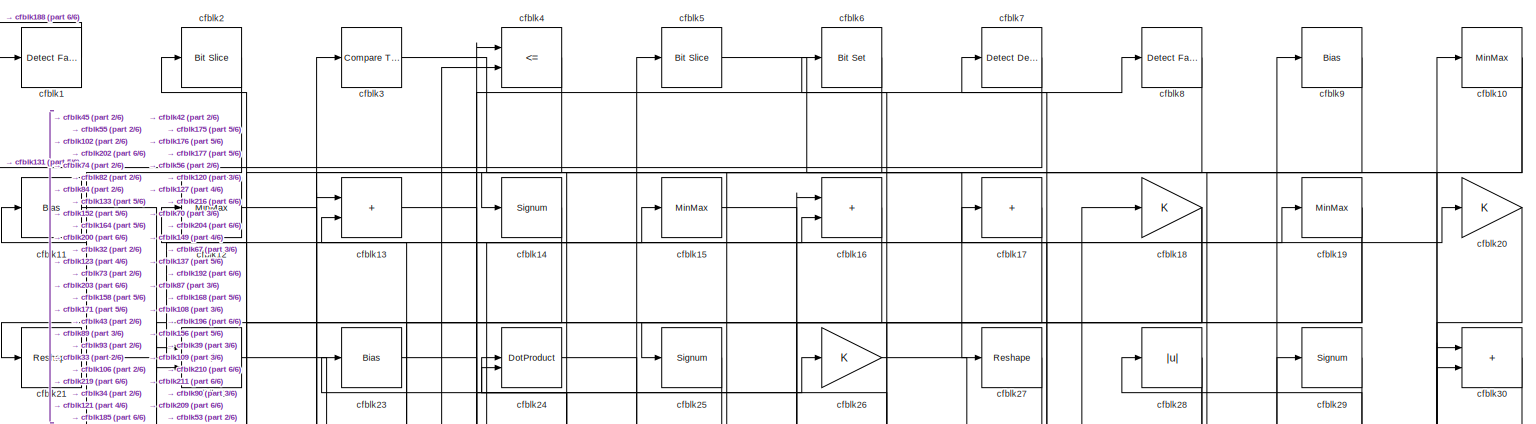
[diagram: root canvas - part 1/6, full width, top band]
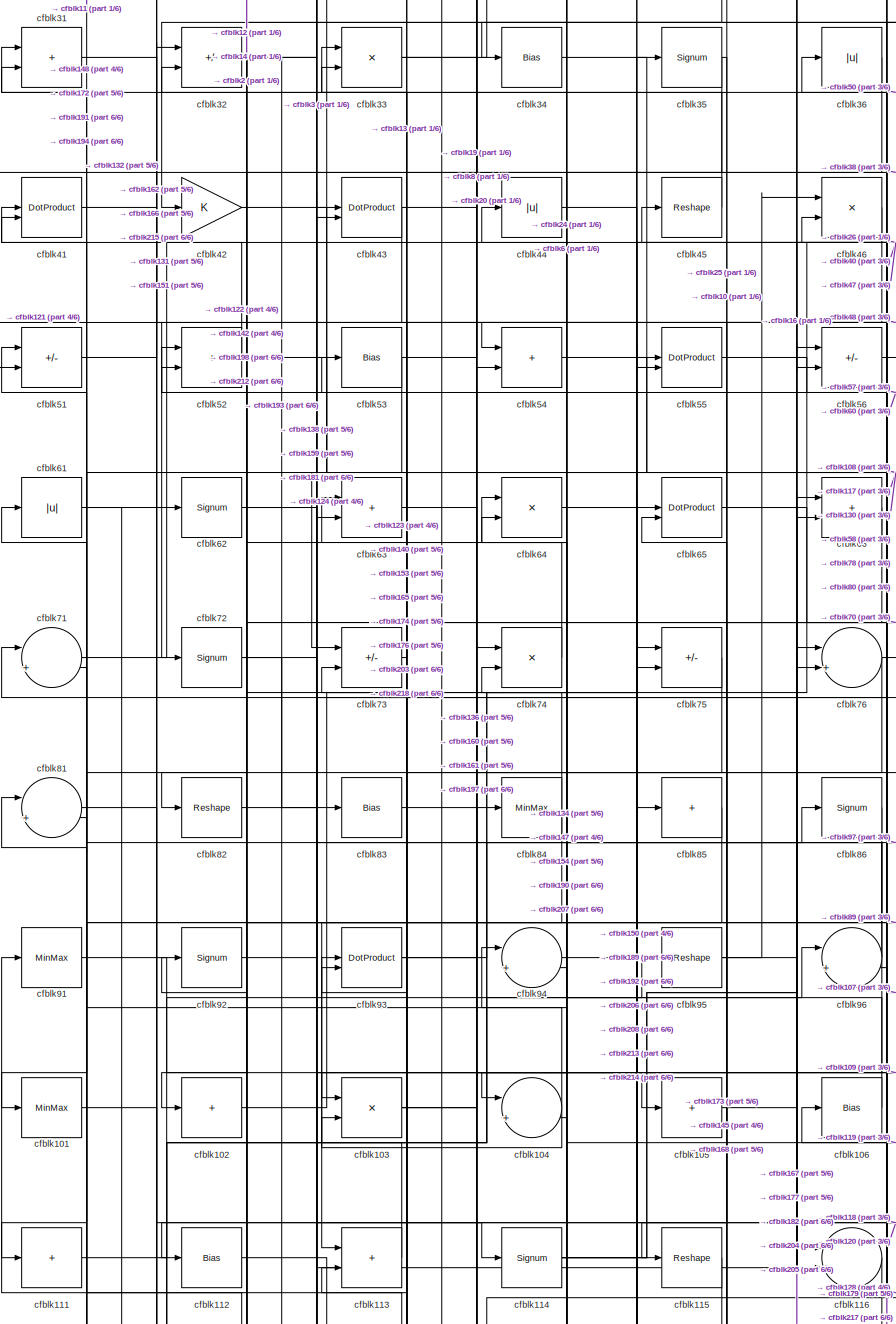
[diagram: root canvas - part 2/6, top left region]
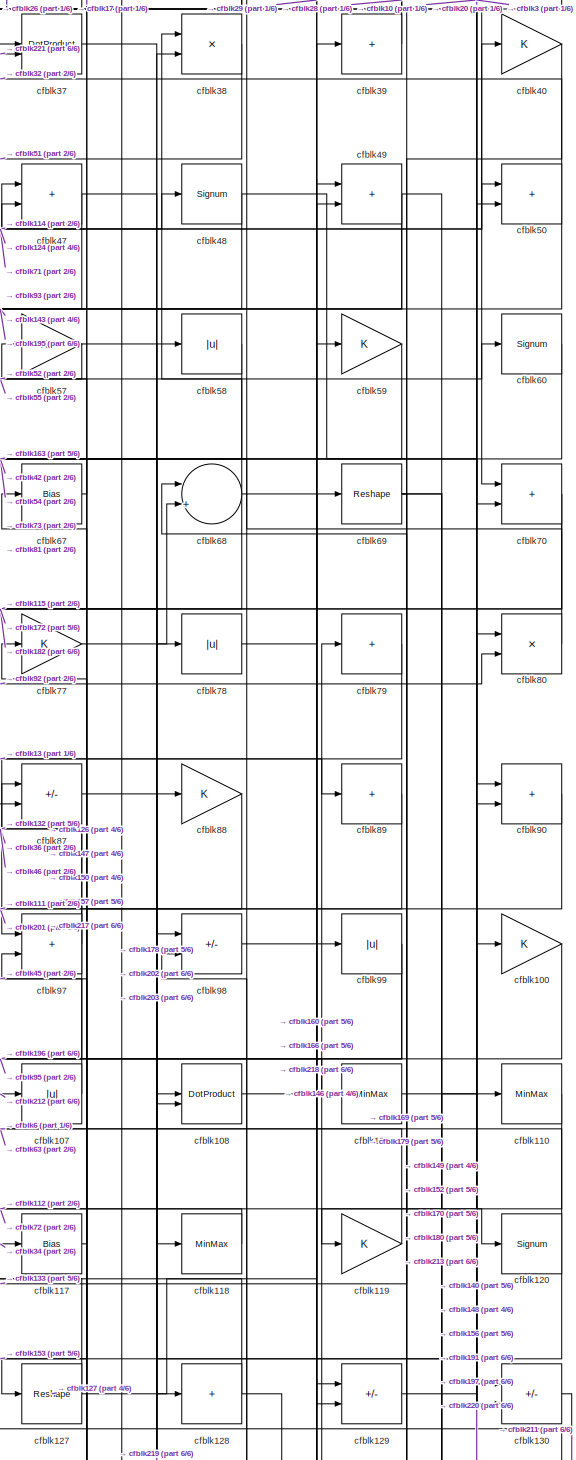
[diagram: root canvas - part 3/6, middle right region]
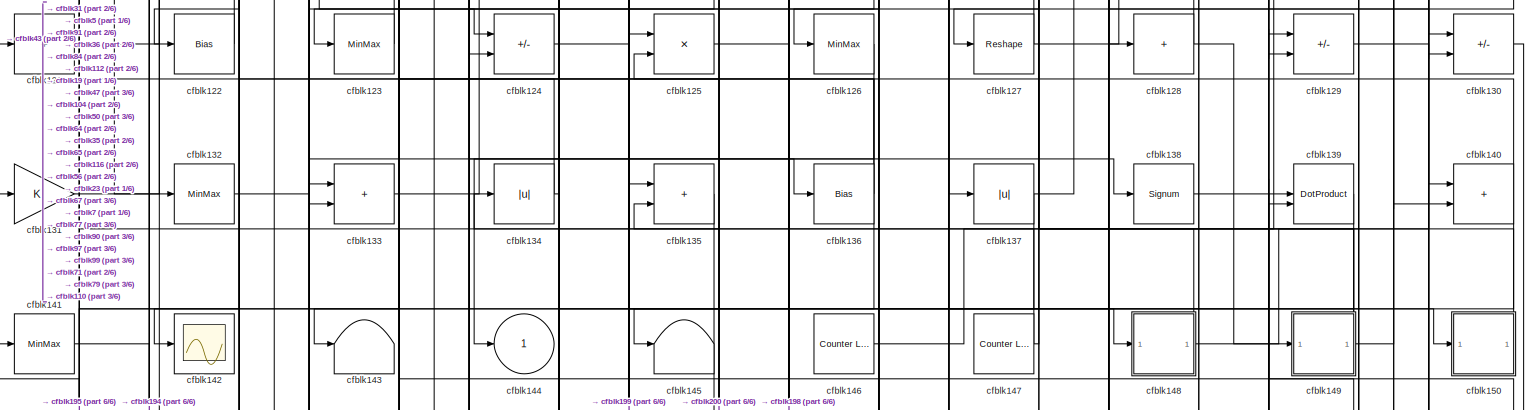
[diagram: root canvas - part 4/6, full width, middle band]
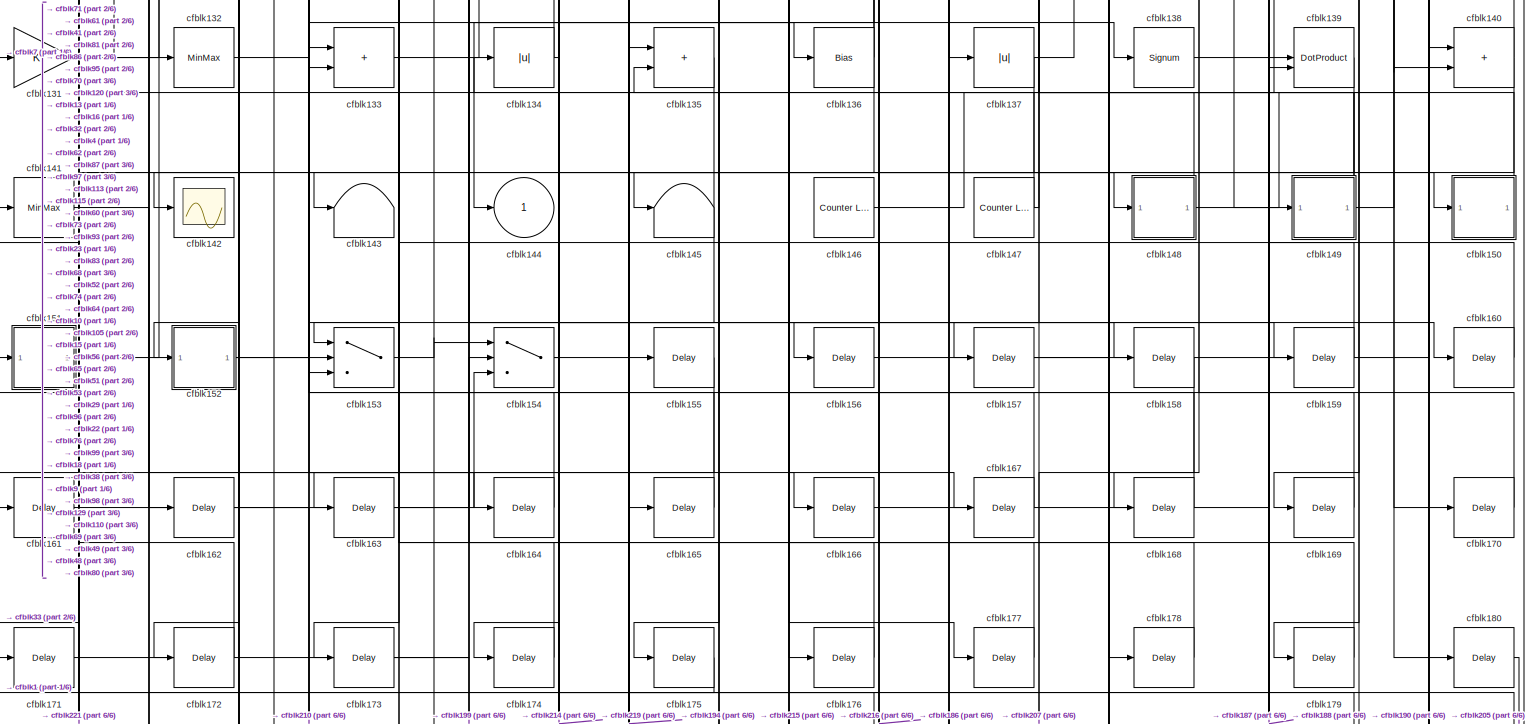
[diagram: root canvas - part 5/6, full width, bottom band]
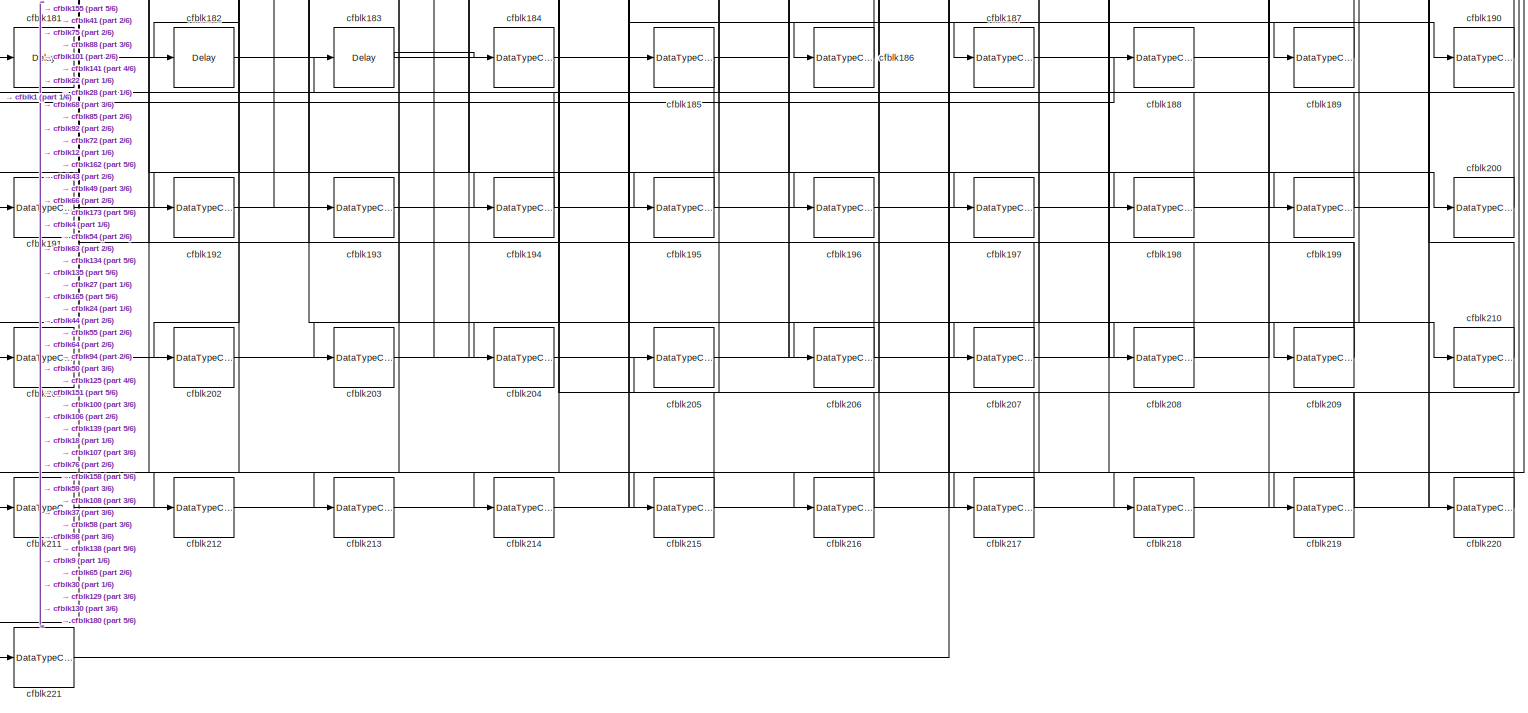
[diagram: root canvas - part 6/6, full width, bottom band]
MODEL slx_bb620e0c5f4d
KIND model
CONFIG AbsTol = auto
CONFIG EnableMultiTasking = off
CONFIG FixedStep = auto
CONFIG MaxStep = auto
CONFIG MinStep = auto
CONFIG RelTol = 1e-3
CONFIG SampleTimeConstraint = Unconstrained
CONFIG SolverName = VariableStepAuto
CONFIG StartTime = 0.0
CONFIG StopTime = 10.0
BLOCK [Reference] cfblk1  REF=hdlsllib/Logic and Bit
Operations/Detect Fall
Negative
  SourceBlock = hdlsllib/Logic and Bit\nOperations/Detect Fall\nNegative
  SourceType = Detect Fall Negative
BLOCK [MinMax] cfblk10
BLOCK [Gain] cfblk100
BLOCK [MinMax] cfblk101
BLOCK [Sum] cfblk102
  IconShape = rectangular
  Inputs = +
BLOCK [Product] cfblk103
  Inputs = */
  RndMeth = Zero
  SaturateOnIntegerOverflow = on
BLOCK [Sum] cfblk104
  Inputs = |++
BLOCK [Sum] cfblk105
  IconShape = rectangular
  Inputs = +
BLOCK [Bias] cfblk106
  Bias = 0.0
  SaturateOnIntegerOverflow = off
BLOCK [Abs] cfblk107
  SaturateOnIntegerOverflow = off
BLOCK [DotProduct] cfblk108
  OutDataTypeStr = Inherit: Inherit via internal rule
BLOCK [MinMax] cfblk109
BLOCK [Bias] cfblk11
  Bias = 0.0
  SaturateOnIntegerOverflow = off
BLOCK [MinMax] cfblk110
BLOCK [Sum] cfblk111
  IconShape = rectangular
  Inputs = +
BLOCK [Bias] cfblk112
  Bias = 0.0
  SaturateOnIntegerOverflow = off
BLOCK [Sum] cfblk113
  IconShape = rectangular
BLOCK [Signum] cfblk114
BLOCK [Reshape] cfblk115
BLOCK [Sum] cfblk116
  Inputs = |++
BLOCK [Bias] cfblk117
  Bias = 0.0
  SaturateOnIntegerOverflow = off
BLOCK [MinMax] cfblk118
BLOCK [Gain] cfblk119
BLOCK [MinMax] cfblk12
BLOCK [Signum] cfblk120
BLOCK [Sum] cfblk121
  IconShape = rectangular
  Inputs = +
BLOCK [Bias] cfblk122
  Bias = 0.0
  SaturateOnIntegerOverflow = off
BLOCK [MinMax] cfblk123
BLOCK [Sum] cfblk124
  IconShape = rectangular
  Inputs = +-
BLOCK [Product] cfblk125
  Inputs = */
  RndMeth = Zero
  SaturateOnIntegerOverflow = on
BLOCK [MinMax] cfblk126
BLOCK [Reshape] cfblk127
BLOCK [Sum] cfblk128
  IconShape = rectangular
  Inputs = +
BLOCK [Sum] cfblk129
  IconShape = rectangular
  Inputs = +-
BLOCK [Sum] cfblk13
  IconShape = rectangular
BLOCK [Sum] cfblk130
  IconShape = rectangular
  Inputs = +-
BLOCK [Gain] cfblk131
BLOCK [MinMax] cfblk132
BLOCK [Sum] cfblk133
  IconShape = rectangular
BLOCK [Abs] cfblk134
  SaturateOnIntegerOverflow = off
BLOCK [Sum] cfblk135
  IconShape = rectangular
BLOCK [Bias] cfblk136
  Bias = 0.0
  SaturateOnIntegerOverflow = off
BLOCK [Abs] cfblk137
  SaturateOnIntegerOverflow = off
BLOCK [Signum] cfblk138
BLOCK [DotProduct] cfblk139
  OutDataTypeStr = Inherit: Inherit via internal rule
BLOCK [Signum] cfblk14
BLOCK [Sum] cfblk140
  IconShape = rectangular
BLOCK [MinMax] cfblk141
BLOCK [Scope] cfblk142
  Floating = off
  NumInputPorts = 1
  ScopeSpecificationString = Simulink.scopes.TimeScopeBlockCfg('CurrentConfiguration', extmgr.ConfigurationSet(extmgr.Configuration('Core','General UI',true),extmgr.Configuration('Core','Source UI',true),extmgr.Configuration('Sources','WiredSimulink',true,'DataLoggingVariableName','ScopeData2','DataLoggingSaveFormat','Array','DataLoggingLimitDataPoints',true,'DataLoggingDecimation','1'),extmgr.Configuration('Visuals','Time Do...<+868ch>
BLOCK [Terminator] cfblk143
BLOCK [Outport] cfblk144
  VectorParamsAs1DForOutWhenUnconnected = off
BLOCK [Terminator] cfblk145
BLOCK [Reference] cfblk146  REF=hdlsllib/Sources/Counter
Limited
  SourceBlock = hdlsllib/Sources/Counter\nLimited
  SourceType = Counter Limited
BLOCK [Reference] cfblk147  REF=hdlsllib/Sources/Counter
Limited
  SourceBlock = hdlsllib/Sources/Counter\nLimited
  SourceType = Counter Limited
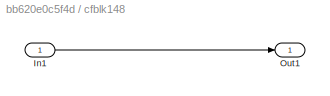
BLOCK [SubSystem] cfblk148
  LibrarySourceBlock = hdlsllib/Ports &\nSubsystems/Subsystem
BLOCK [Inport] cfblk148/In1
BLOCK [Outport] cfblk148/Out1
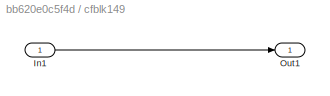
BLOCK [SubSystem] cfblk149
  LibrarySourceBlock = hdlsllib/Ports &\nSubsystems/Subsystem
BLOCK [Inport] cfblk149/In1
BLOCK [Outport] cfblk149/Out1
BLOCK [MinMax] cfblk15
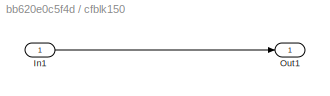
BLOCK [SubSystem] cfblk150
  LibrarySourceBlock = hdlsllib/Ports &\nSubsystems/Subsystem
BLOCK [Inport] cfblk150/In1
BLOCK [Outport] cfblk150/Out1
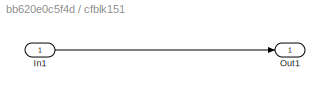
BLOCK [SubSystem] cfblk151
  LibrarySourceBlock = hdlsllib/Ports &\nSubsystems/Subsystem
BLOCK [Inport] cfblk151/In1
BLOCK [Outport] cfblk151/Out1
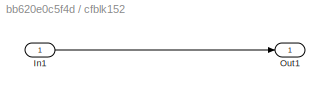
BLOCK [SubSystem] cfblk152
  LibrarySourceBlock = hdlsllib/Ports &\nSubsystems/Subsystem
BLOCK [Inport] cfblk152/In1
BLOCK [Outport] cfblk152/Out1
BLOCK [Switch] cfblk153
  InputSameDT = off
  SaturateOnIntegerOverflow = off
BLOCK [Switch] cfblk154
  InputSameDT = off
  SaturateOnIntegerOverflow = off
BLOCK [Delay] cfblk155
  InputPortMap = u0
  SampleTime = 1
BLOCK [Delay] cfblk156
  InputPortMap = u0
  SampleTime = 1
BLOCK [Delay] cfblk157
  InputPortMap = u0
  SampleTime = 1
BLOCK [Delay] cfblk158
  InputPortMap = u0
  SampleTime = 1
BLOCK [Delay] cfblk159
  InputPortMap = u0
  SampleTime = 1
BLOCK [Sum] cfblk16
  IconShape = rectangular
BLOCK [Delay] cfblk160
  InputPortMap = u0
  SampleTime = 1
BLOCK [Delay] cfblk161
  InputPortMap = u0
  SampleTime = 1
BLOCK [Delay] cfblk162
  InputPortMap = u0
  SampleTime = 1
BLOCK [Delay] cfblk163
  InputPortMap = u0
  SampleTime = 1
BLOCK [Delay] cfblk164
  InputPortMap = u0
  SampleTime = 1
BLOCK [Delay] cfblk165
  InputPortMap = u0
  SampleTime = 1
BLOCK [Delay] cfblk166
  InputPortMap = u0
  SampleTime = 1
BLOCK [Delay] cfblk167
  InputPortMap = u0
  SampleTime = 1
BLOCK [Delay] cfblk168
  InputPortMap = u0
  SampleTime = 1
BLOCK [Delay] cfblk169
  InputPortMap = u0
  SampleTime = 1
BLOCK [Sum] cfblk17
  IconShape = rectangular
  Inputs = +
BLOCK [Delay] cfblk170
  InputPortMap = u0
  SampleTime = 1
BLOCK [Delay] cfblk171
  InputPortMap = u0
  SampleTime = 1
BLOCK [Delay] cfblk172
  InputPortMap = u0
  SampleTime = 1
BLOCK [Delay] cfblk173
  InputPortMap = u0
  SampleTime = 1
BLOCK [Delay] cfblk174
  InputPortMap = u0
  SampleTime = 1
BLOCK [Delay] cfblk175
  InputPortMap = u0
  SampleTime = 1
BLOCK [Delay] cfblk176
  InputPortMap = u0
  SampleTime = 1
BLOCK [Delay] cfblk177
  InputPortMap = u0
  SampleTime = 1
BLOCK [Delay] cfblk178
  InputPortMap = u0
  SampleTime = 1
BLOCK [Delay] cfblk179
  InputPortMap = u0
  SampleTime = 1
BLOCK [Gain] cfblk18
BLOCK [Delay] cfblk180
  InputPortMap = u0
  SampleTime = 1
BLOCK [Delay] cfblk181
  InputPortMap = u0
  SampleTime = 1
BLOCK [Delay] cfblk182
  InputPortMap = u0
  SampleTime = 1
BLOCK [Delay] cfblk183
  InputPortMap = u0
  SampleTime = 1
BLOCK [DataTypeConversion] cfblk184
  OutDataTypeStr = uint8
  RndMeth = Floor
  SaturateOnIntegerOverflow = off
BLOCK [DataTypeConversion] cfblk185
  OutDataTypeStr = uint8
  RndMeth = Floor
  SaturateOnIntegerOverflow = off
BLOCK [DataTypeConversion] cfblk186
  OutDataTypeStr = uint8
  RndMeth = Floor
  SaturateOnIntegerOverflow = off
BLOCK [DataTypeConversion] cfblk187
  OutDataTypeStr = uint8
  RndMeth = Floor
  SaturateOnIntegerOverflow = off
BLOCK [DataTypeConversion] cfblk188
  OutDataTypeStr = uint8
  RndMeth = Floor
  SaturateOnIntegerOverflow = off
BLOCK [DataTypeConversion] cfblk189
  OutDataTypeStr = uint8
  RndMeth = Floor
  SaturateOnIntegerOverflow = off
BLOCK [MinMax] cfblk19
BLOCK [DataTypeConversion] cfblk190
  OutDataTypeStr = uint8
  RndMeth = Floor
  SaturateOnIntegerOverflow = off
BLOCK [DataTypeConversion] cfblk191
  OutDataTypeStr = uint8
  RndMeth = Floor
  SaturateOnIntegerOverflow = off
BLOCK [DataTypeConversion] cfblk192
  OutDataTypeStr = uint8
  RndMeth = Floor
  SaturateOnIntegerOverflow = off
BLOCK [DataTypeConversion] cfblk193
  OutDataTypeStr = uint8
  RndMeth = Floor
  SaturateOnIntegerOverflow = off
BLOCK [DataTypeConversion] cfblk194
  RndMeth = Floor
  SaturateOnIntegerOverflow = off
BLOCK [DataTypeConversion] cfblk195
  OutDataTypeStr = uint8
  RndMeth = Floor
  SaturateOnIntegerOverflow = off
BLOCK [DataTypeConversion] cfblk196
  RndMeth = Floor
  SaturateOnIntegerOverflow = off
BLOCK [DataTypeConversion] cfblk197
  OutDataTypeStr = uint8
  RndMeth = Floor
  SaturateOnIntegerOverflow = off
BLOCK [DataTypeConversion] cfblk198
  OutDataTypeStr = uint8
  RndMeth = Floor
  SaturateOnIntegerOverflow = off
BLOCK [DataTypeConversion] cfblk199
  OutDataTypeStr = uint8
  RndMeth = Floor
  SaturateOnIntegerOverflow = off
BLOCK [Reference] cfblk2  REF=hdlsllib/Logic and Bit
Operations/Bit Slice
  SourceBlock = hdlsllib/Logic and Bit\nOperations/Bit Slice
  SourceType = Bit Slice
BLOCK [Gain] cfblk20
BLOCK [DataTypeConversion] cfblk200
  OutDataTypeStr = uint8
  RndMeth = Floor
  SaturateOnIntegerOverflow = off
BLOCK [DataTypeConversion] cfblk201
  RndMeth = Floor
  SaturateOnIntegerOverflow = off
BLOCK [DataTypeConversion] cfblk202
  OutDataTypeStr = uint8
  RndMeth = Floor
  SaturateOnIntegerOverflow = off
BLOCK [DataTypeConversion] cfblk203
  RndMeth = Floor
  SaturateOnIntegerOverflow = off
BLOCK [DataTypeConversion] cfblk204
  OutDataTypeStr = uint8
  RndMeth = Floor
  SaturateOnIntegerOverflow = off
BLOCK [DataTypeConversion] cfblk205
  OutDataTypeStr = uint8
  RndMeth = Floor
  SaturateOnIntegerOverflow = off
BLOCK [DataTypeConversion] cfblk206
  OutDataTypeStr = uint8
  RndMeth = Floor
  SaturateOnIntegerOverflow = off
BLOCK [DataTypeConversion] cfblk207
  OutDataTypeStr = uint8
  RndMeth = Floor
  SaturateOnIntegerOverflow = off
BLOCK [DataTypeConversion] cfblk208
  OutDataTypeStr = uint8
  RndMeth = Floor
  SaturateOnIntegerOverflow = off
BLOCK [DataTypeConversion] cfblk209
  RndMeth = Floor
  SaturateOnIntegerOverflow = off
BLOCK [Reshape] cfblk21
BLOCK [DataTypeConversion] cfblk210
  OutDataTypeStr = uint8
  RndMeth = Floor
  SaturateOnIntegerOverflow = off
BLOCK [DataTypeConversion] cfblk211
  OutDataTypeStr = uint8
  RndMeth = Floor
  SaturateOnIntegerOverflow = off
BLOCK [DataTypeConversion] cfblk212
  OutDataTypeStr = uint8
  RndMeth = Floor
  SaturateOnIntegerOverflow = off
BLOCK [DataTypeConversion] cfblk213
  OutDataTypeStr = uint8
  RndMeth = Floor
  SaturateOnIntegerOverflow = off
BLOCK [DataTypeConversion] cfblk214
  OutDataTypeStr = uint8
  RndMeth = Floor
  SaturateOnIntegerOverflow = off
BLOCK [DataTypeConversion] cfblk215
  OutDataTypeStr = uint8
  RndMeth = Floor
  SaturateOnIntegerOverflow = off
BLOCK [DataTypeConversion] cfblk216
  OutDataTypeStr = uint8
  RndMeth = Floor
  SaturateOnIntegerOverflow = off
BLOCK [DataTypeConversion] cfblk217
  OutDataTypeStr = uint8
  RndMeth = Floor
  SaturateOnIntegerOverflow = off
BLOCK [DataTypeConversion] cfblk218
  OutDataTypeStr = uint8
  RndMeth = Floor
  SaturateOnIntegerOverflow = off
BLOCK [DataTypeConversion] cfblk219
  RndMeth = Floor
  SaturateOnIntegerOverflow = off
BLOCK [Sum] cfblk22
  IconShape = rectangular
  Inputs = +-
BLOCK [DataTypeConversion] cfblk220
  OutDataTypeStr = uint8
  RndMeth = Floor
  SaturateOnIntegerOverflow = off
BLOCK [DataTypeConversion] cfblk221
  OutDataTypeStr = uint8
  RndMeth = Floor
  SaturateOnIntegerOverflow = off
BLOCK [Bias] cfblk23
  Bias = 0.0
  SaturateOnIntegerOverflow = off
BLOCK [DotProduct] cfblk24
  OutDataTypeStr = Inherit: Inherit via internal rule
BLOCK [Signum] cfblk25
BLOCK [Gain] cfblk26
BLOCK [Reshape] cfblk27
BLOCK [Abs] cfblk28
  SaturateOnIntegerOverflow = off
BLOCK [Signum] cfblk29
BLOCK [Reference] cfblk3  REF=hdlsllib/Logic and Bit
Operations/Compare
To Constant
  SourceBlock = hdlsllib/Logic and Bit\nOperations/Compare\nTo Constant
  SourceType = Compare To Constant
BLOCK [Sum] cfblk30
  IconShape = rectangular
BLOCK [Sum] cfblk31
  IconShape = rectangular
BLOCK [Sum] cfblk32
  IconShape = rectangular
  Inputs = +-
BLOCK [Product] cfblk33
  Inputs = */
  RndMeth = Zero
  SaturateOnIntegerOverflow = on
BLOCK [Bias] cfblk34
  Bias = 0.0
  SaturateOnIntegerOverflow = off
BLOCK [Signum] cfblk35
BLOCK [Abs] cfblk36
  SaturateOnIntegerOverflow = off
BLOCK [DotProduct] cfblk37
  OutDataTypeStr = Inherit: Inherit via internal rule
BLOCK [Product] cfblk38
  Inputs = */
  RndMeth = Zero
  SaturateOnIntegerOverflow = on
BLOCK [Sum] cfblk39
  IconShape = rectangular
  Inputs = +
BLOCK [RelationalOperator] cfblk4
  InputSameDT = off
  Operator = <=
  OutDataTypeStr = boolean
BLOCK [Gain] cfblk40
BLOCK [DotProduct] cfblk41
  OutDataTypeStr = Inherit: Inherit via internal rule
BLOCK [Gain] cfblk42
BLOCK [DotProduct] cfblk43
  OutDataTypeStr = Inherit: Inherit via internal rule
BLOCK [Abs] cfblk44
  SaturateOnIntegerOverflow = off
BLOCK [Reshape] cfblk45
BLOCK [Product] cfblk46
  Inputs = */
  RndMeth = Zero
  SaturateOnIntegerOverflow = on
BLOCK [Sum] cfblk47
  IconShape = rectangular
BLOCK [Signum] cfblk48
BLOCK [Sum] cfblk49
  IconShape = rectangular
BLOCK [Reference] cfblk5  REF=hdlsllib/Logic and Bit
Operations/Bit Slice
  SourceBlock = hdlsllib/Logic and Bit\nOperations/Bit Slice
  SourceType = Bit Slice
BLOCK [Sum] cfblk50
  IconShape = rectangular
BLOCK [Sum] cfblk51
  IconShape = rectangular
  Inputs = +-
BLOCK [Sum] cfblk52
  IconShape = rectangular
BLOCK [Bias] cfblk53
  Bias = 0.0
  SaturateOnIntegerOverflow = off
BLOCK [Sum] cfblk54
  IconShape = rectangular
BLOCK [DotProduct] cfblk55
  OutDataTypeStr = Inherit: Inherit via internal rule
BLOCK [Sum] cfblk56
  IconShape = rectangular
  Inputs = +-
BLOCK [Gain] cfblk57
BLOCK [Abs] cfblk58
  SaturateOnIntegerOverflow = off
BLOCK [Gain] cfblk59
BLOCK [Reference] cfblk6  REF=simulink/Logic and Bit
Operations/Bit Set
  LibrarySourceBlock = hdlsllib/Logic and Bit\nOperations/Bit Set
  SourceBlock = simulink/Logic and Bit\nOperations/Bit Set
  SourceType = Bit Set
BLOCK [Signum] cfblk60
BLOCK [Abs] cfblk61
  SaturateOnIntegerOverflow = off
BLOCK [Signum] cfblk62
BLOCK [Sum] cfblk63
  IconShape = rectangular
BLOCK [Product] cfblk64
  Inputs = */
  RndMeth = Zero
  SaturateOnIntegerOverflow = on
BLOCK [DotProduct] cfblk65
  OutDataTypeStr = Inherit: Inherit via internal rule
BLOCK [Sum] cfblk66
  IconShape = rectangular
BLOCK [Bias] cfblk67
  Bias = 0.0
  SaturateOnIntegerOverflow = off
BLOCK [Sum] cfblk68
  Inputs = |++
BLOCK [Reshape] cfblk69
BLOCK [Reference] cfblk7  REF=simulink/Logic and Bit
Operations/Detect
Decrease
  LibrarySourceBlock = hdlsllib/Logic and Bit\nOperations/Detect\nDecrease
  SourceBlock = simulink/Logic and Bit\nOperations/Detect\nDecrease
  SourceType = Detect Decrease
BLOCK [Sum] cfblk70
  IconShape = rectangular
BLOCK [Sum] cfblk71
  Inputs = |++
BLOCK [Signum] cfblk72
BLOCK [Sum] cfblk73
  IconShape = rectangular
  Inputs = +-
BLOCK [Product] cfblk74
  Inputs = */
  RndMeth = Zero
  SaturateOnIntegerOverflow = on
BLOCK [Sum] cfblk75
  IconShape = rectangular
  Inputs = +-
BLOCK [Sum] cfblk76
  Inputs = |++
BLOCK [Gain] cfblk77
BLOCK [Abs] cfblk78
  SaturateOnIntegerOverflow = off
BLOCK [Sum] cfblk79
  IconShape = rectangular
  Inputs = +
BLOCK [Reference] cfblk8  REF=hdlsllib/Logic and Bit
Operations/Detect Fall
Negative
  SourceBlock = hdlsllib/Logic and Bit\nOperations/Detect Fall\nNegative
  SourceType = Detect Fall Negative
BLOCK [Product] cfblk80
  Inputs = */
  RndMeth = Zero
  SaturateOnIntegerOverflow = on
BLOCK [Sum] cfblk81
  Inputs = |++
BLOCK [Reshape] cfblk82
BLOCK [Bias] cfblk83
  Bias = 0.0
  SaturateOnIntegerOverflow = off
BLOCK [MinMax] cfblk84
BLOCK [Sum] cfblk85
  IconShape = rectangular
  Inputs = +
BLOCK [Signum] cfblk86
BLOCK [Sum] cfblk87
  IconShape = rectangular
  Inputs = +-
BLOCK [Gain] cfblk88
BLOCK [Sum] cfblk89
  IconShape = rectangular
  Inputs = +
BLOCK [Bias] cfblk9
  Bias = 0.0
  SaturateOnIntegerOverflow = off
BLOCK [Sum] cfblk90
  IconShape = rectangular
BLOCK [MinMax] cfblk91
BLOCK [Signum] cfblk92
BLOCK [DotProduct] cfblk93
  OutDataTypeStr = Inherit: Inherit via internal rule
BLOCK [Sum] cfblk94
  Inputs = |++
BLOCK [Reshape] cfblk95
BLOCK [Sum] cfblk96
  Inputs = |++
BLOCK [Sum] cfblk97
  IconShape = rectangular
BLOCK [Sum] cfblk98
  IconShape = rectangular
  Inputs = +-
BLOCK [Abs] cfblk99
  SaturateOnIntegerOverflow = off
LINE cfblk100:1 -> cfblk196:1
LINE cfblk101:1 -> cfblk215:1
LINE cfblk102:1 -> cfblk35:1
NET cfblk103:1 -> cfblk105:1, cfblk84:1
NET cfblk104:1 -> cfblk103:2, cfblk81:1
LINE cfblk105:1 -> cfblk177:1
LINE cfblk106:1 -> cfblk24:1
LINE cfblk107:1 -> cfblk45:1
LINE cfblk108:1 -> cfblk29:1
LINE cfblk109:1 -> cfblk10:1
NET cfblk10:1 -> cfblk175:1, cfblk82:1
LINE cfblk110:1 -> cfblk179:1
LINE cfblk111:1 -> cfblk96:1
LINE cfblk112:1 -> cfblk124:1
LINE cfblk113:1 -> cfblk93:1
NET cfblk114:1 -> cfblk47:1, cfblk47:2, cfblk76:1
LINE cfblk115:1 -> cfblk173:1
LINE cfblk116:1 -> cfblk124:2
LINE cfblk117:1 -> cfblk57:1
LINE cfblk118:1 -> cfblk112:1
LINE cfblk119:1 -> cfblk63:1
LINE cfblk11:1 -> cfblk55:2
NET cfblk120:1 -> cfblk153:2, cfblk6:1
LINE cfblk121:1 -> cfblk5:1
LINE cfblk122:1 -> cfblk91:1
LINE cfblk123:1 -> cfblk31:2
LINE cfblk124:1 -> cfblk50:1
LINE cfblk125:1 -> cfblk198:1
LINE cfblk126:1 -> cfblk144:1
NET cfblk127:1 -> cfblk23:1, cfblk99:1
NET cfblk128:1 -> cfblk149:1, cfblk71:1
LINE cfblk129:1 -> cfblk220:1
LINE cfblk12:1 -> cfblk200:1
LINE cfblk130:1 -> cfblk211:1
LINE cfblk131:1 -> cfblk95:1
LINE cfblk132:1 -> cfblk87:1
LINE cfblk133:1 -> cfblk68:1
NET cfblk134:1 -> cfblk52:1, cfblk74:2
LINE cfblk135:1 -> cfblk214:1
NET cfblk136:1 -> cfblk174:1, cfblk51:1, cfblk53:1
NET cfblk137:1 -> cfblk161:1, cfblk18:1
LINE cfblk138:1 -> cfblk190:1
LINE cfblk139:1 -> cfblk186:1
LINE cfblk13:1 -> cfblk89:1
NET cfblk140:1 -> cfblk171:1, cfblk33:1
LINE cfblk141:1 -> cfblk194:1
LINE cfblk146:1 -> cfblk79:1
NET cfblk147:1 -> cfblk104:2, cfblk97:2
LINE cfblk148/In1:1 -> cfblk148/Out1:1
NET cfblk148:1 -> cfblk31:1, cfblk90:2
LINE cfblk149/In1:1 -> cfblk149/Out1:1
NET cfblk149:1 -> cfblk110:1, cfblk67:1, cfblk7:1
LINE cfblk14:1 -> cfblk102:1
LINE cfblk150/In1:1 -> cfblk150/Out1:1
LINE cfblk150:1 -> cfblk77:1
LINE cfblk151/In1:1 -> cfblk151/Out1:1
LINE cfblk151:1 -> cfblk86:1
LINE cfblk152/In1:1 -> cfblk152/Out1:1
NET cfblk152:1 -> cfblk164:1, cfblk16:2
LINE cfblk153:1 -> cfblk154:1
NET cfblk154:1 -> cfblk155:1, cfblk64:2
LINE cfblk155:1 -> cfblk221:1
LINE cfblk156:1 -> cfblk80:1
LINE cfblk157:1 -> cfblk38:2
LINE cfblk158:1 -> cfblk207:1
LINE cfblk159:1 -> cfblk93:2
LINE cfblk15:1 -> cfblk176:1
LINE cfblk160:1 -> cfblk129:1
LINE cfblk161:1 -> cfblk74:1
LINE cfblk162:1 -> cfblk210:1
LINE cfblk163:1 -> cfblk154:3
LINE cfblk164:1 -> cfblk13:1
LINE cfblk165:1 -> cfblk73:2
LINE cfblk166:1 -> cfblk49:1
LINE cfblk167:1 -> cfblk56:1
LINE cfblk168:1 -> cfblk65:2
LINE cfblk169:1 -> cfblk133:1
LINE cfblk16:1 -> cfblk56:2
LINE cfblk170:1 -> cfblk98:2
LINE cfblk171:1 -> cfblk4:1
LINE cfblk172:1 -> cfblk71:2
LINE cfblk173:1 -> cfblk199:1
LINE cfblk174:1 -> cfblk33:2
LINE cfblk175:1 -> cfblk1:1
LINE cfblk176:1 -> cfblk113:2
LINE cfblk177:1 -> cfblk16:1
LINE cfblk178:1 -> cfblk154:2
LINE cfblk179:1 -> cfblk96:2
LINE cfblk17:1 -> cfblk25:1
LINE cfblk180:1 -> cfblk205:1
LINE cfblk181:1 -> cfblk43:2
LINE cfblk182:1 -> cfblk76:2
LINE cfblk183:1 -> cfblk184:1
LINE cfblk184:1 -> cfblk187:1
LINE cfblk185:1 -> cfblk183:1
LINE cfblk186:1 -> cfblk151:1
LINE cfblk187:1 -> cfblk139:1
LINE cfblk188:1 -> cfblk139:2
LINE cfblk189:1 -> cfblk65:1
NET cfblk18:1 -> cfblk202:1, cfblk216:1
LINE cfblk190:1 -> cfblk44:1
LINE cfblk191:1 -> cfblk50:2
LINE cfblk192:1 -> cfblk75:1
LINE cfblk193:1 -> cfblk75:2
NET cfblk194:1 -> cfblk165:1, cfblk41:2
LINE cfblk195:1 -> cfblk141:1
NET cfblk196:1 -> cfblk98:1, cfblk9:1
LINE cfblk197:1 -> cfblk100:1
LINE cfblk198:1 -> cfblk92:1
LINE cfblk199:1 -> cfblk125:1
NET cfblk19:1 -> cfblk123:1, cfblk22:2
LINE cfblk1:1 -> cfblk188:1
LINE cfblk200:1 -> cfblk125:2
NET cfblk201:1 -> cfblk49:2, cfblk58:1
LINE cfblk202:1 -> cfblk88:1
NET cfblk203:1 -> cfblk108:1, cfblk4:2, cfblk54:2
LINE cfblk204:1 -> cfblk66:1
LINE cfblk205:1 -> cfblk66:2
LINE cfblk206:1 -> cfblk43:1
LINE cfblk207:1 -> cfblk94:1
LINE cfblk208:1 -> cfblk94:2
NET cfblk209:1 -> cfblk181:1, cfblk22:1
LINE cfblk20:1 -> cfblk70:2
LINE cfblk210:1 -> cfblk30:1
LINE cfblk211:1 -> cfblk30:2
LINE cfblk212:1 -> cfblk107:1
LINE cfblk213:1 -> cfblk85:1
LINE cfblk214:1 -> cfblk55:1
LINE cfblk215:1 -> cfblk135:1
LINE cfblk216:1 -> cfblk135:2
LINE cfblk217:1 -> cfblk106:1
LINE cfblk218:1 -> cfblk59:1
NET cfblk219:1 -> cfblk134:1, cfblk24:2
LINE cfblk21:1 -> cfblk15:1
LINE cfblk220:1 -> cfblk37:1
LINE cfblk221:1 -> cfblk37:2
LINE cfblk22:1 -> cfblk137:1
LINE cfblk23:1 -> cfblk158:1
LINE cfblk24:1 -> cfblk185:1
LINE cfblk25:1 -> cfblk42:1
LINE cfblk26:1 -> cfblk70:1
LINE cfblk27:1 -> cfblk204:1
NET cfblk28:1 -> cfblk192:1, cfblk87:2
LINE cfblk29:1 -> cfblk156:1
LINE cfblk2:1 -> cfblk21:1
LINE cfblk30:1 -> cfblk209:1
LINE cfblk31:1 -> cfblk62:1
NET cfblk32:1 -> cfblk159:1, cfblk3:1, cfblk83:1
NET cfblk33:1 -> cfblk136:1, cfblk20:1
LINE cfblk34:1 -> cfblk117:1
NET cfblk35:1 -> cfblk145:1, cfblk54:1
LINE cfblk36:1 -> cfblk142:1
LINE cfblk37:1 -> cfblk219:1
LINE cfblk38:1 -> cfblk51:2
LINE cfblk39:1 -> cfblk28:1
LINE cfblk3:1 -> cfblk90:1
LINE cfblk40:1 -> cfblk119:1
LINE cfblk41:1 -> cfblk166:1
LINE cfblk42:1 -> cfblk78:1
NET cfblk43:1 -> cfblk121:1, cfblk19:1
LINE cfblk44:1 -> cfblk189:1
LINE cfblk45:1 -> cfblk11:1
LINE cfblk46:1 -> cfblk104:1
NET cfblk47:1 -> cfblk118:1, cfblk143:1
NET cfblk48:1 -> cfblk140:1, cfblk72:1
NET cfblk49:1 -> cfblk152:1, cfblk180:1, cfblk213:1
LINE cfblk4:1 -> cfblk133:2
NET cfblk50:1 -> cfblk195:1, cfblk32:2
LINE cfblk51:1 -> cfblk32:1
NET cfblk52:1 -> cfblk130:1, cfblk41:1
NET cfblk53:1 -> cfblk101:1, cfblk8:1
LINE cfblk54:1 -> cfblk108:2
LINE cfblk55:1 -> cfblk60:1
LINE cfblk56:1 -> cfblk148:1
NET cfblk57:1 -> cfblk129:2, cfblk52:2
LINE cfblk58:1 -> cfblk81:2
LINE cfblk59:1 -> cfblk217:1
LINE cfblk5:1 -> cfblk27:1
LINE cfblk60:1 -> cfblk163:1
NET cfblk61:1 -> cfblk114:1, cfblk132:1
NET cfblk62:1 -> cfblk116:2, cfblk138:1
LINE cfblk63:1 -> cfblk197:1
NET cfblk64:1 -> cfblk150:1, cfblk208:1
NET cfblk65:1 -> cfblk128:1, cfblk167:1
LINE cfblk66:1 -> cfblk203:1
LINE cfblk67:1 -> cfblk17:1
NET cfblk68:1 -> cfblk130:2, cfblk182:1, cfblk38:1
NET cfblk69:1 -> cfblk140:2, cfblk169:1, cfblk170:1
LINE cfblk6:1 -> cfblk34:1
NET cfblk70:1 -> cfblk115:1, cfblk172:1
LINE cfblk71:1 -> cfblk40:1
NET cfblk72:1 -> cfblk120:1, cfblk193:1
LINE cfblk73:1 -> cfblk13:2
LINE cfblk74:1 -> cfblk12:1
LINE cfblk75:1 -> cfblk191:1
NET cfblk76:1 -> cfblk153:1, cfblk218:1
LINE cfblk77:1 -> cfblk68:2
LINE cfblk78:1 -> cfblk39:1
LINE cfblk79:1 -> cfblk97:1
LINE cfblk7:1 -> cfblk131:1
LINE cfblk80:1 -> cfblk73:1
LINE cfblk81:1 -> cfblk162:1
LINE cfblk82:1 -> cfblk63:2
LINE cfblk83:1 -> cfblk160:1
NET cfblk84:1 -> cfblk122:1, cfblk2:1
LINE cfblk85:1 -> cfblk212:1
LINE cfblk86:1 -> cfblk113:1
LINE cfblk87:1 -> cfblk178:1
LINE cfblk88:1 -> cfblk201:1
LINE cfblk89:1 -> cfblk111:1
LINE cfblk8:1 -> cfblk14:1
LINE cfblk90:1 -> cfblk127:1
LINE cfblk91:1 -> cfblk116:1
LINE cfblk92:1 -> cfblk80:2
NET cfblk93:1 -> cfblk26:1, cfblk48:1
LINE cfblk94:1 -> cfblk206:1
NET cfblk95:1 -> cfblk109:1, cfblk46:1
NET cfblk96:1 -> cfblk103:1, cfblk61:1, cfblk64:1
NET cfblk97:1 -> cfblk153:3, cfblk36:1, cfblk46:2
LINE cfblk98:1 -> cfblk69:1
NET cfblk99:1 -> cfblk126:1, cfblk157:1
LINE cfblk9:1 -> cfblk168:1
note: NET lines group one-source signal fan-out (src -> all destinations, sorted); 1:1 wires keep LINE
